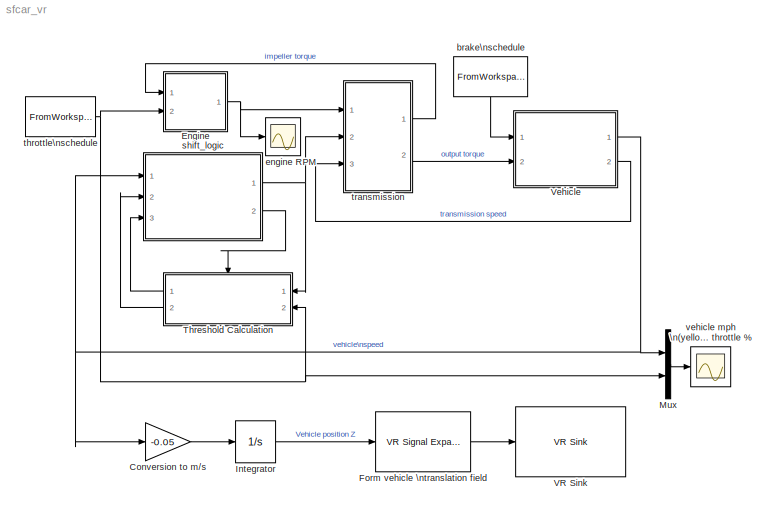
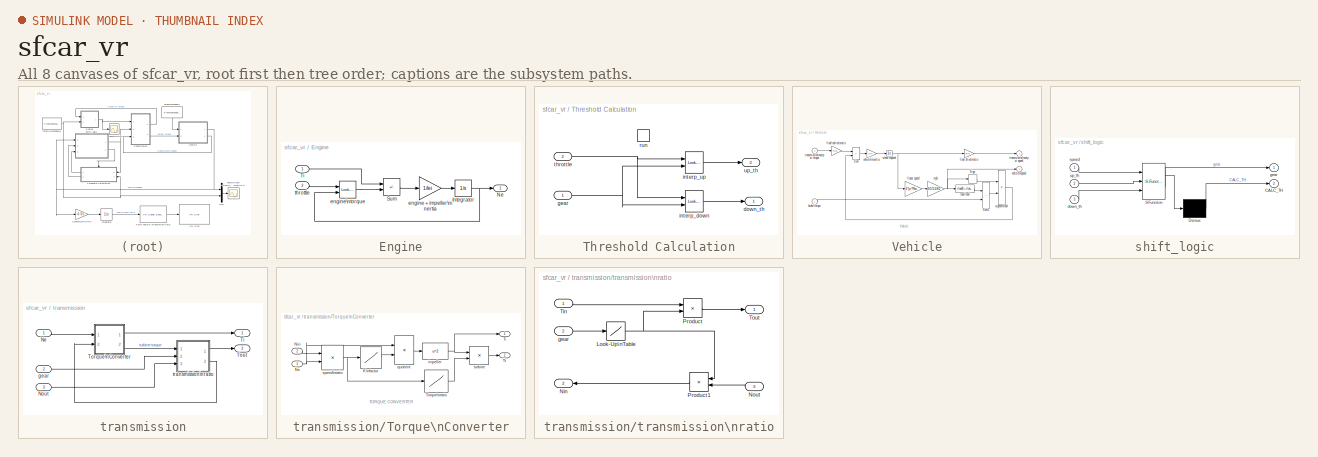
[diagram: thumbnail index - all 8 canvases of the model, root first then tree order]
MODEL sfcar_vr
KIND model
CONFIG AbsTol = 1e-6
CONFIG FixedStep = auto
CONFIG MaxStep = auto
CONFIG MinStep = auto
CONFIG PreLoadFcn = load sf_cardat
CONFIG RelTol = 1e-3
CONFIG Solver = ode5
CONFIG SolverMode = SingleTasking
CONFIG StartTime = 0.0
CONFIG StopTime = 30
BLOCK [Gain] Conversion to m//s
  Gain = -0.05
  Multiplication = Element-wise(K.*u)
  SaturateOnIntegerOverflow = on
BLOCK [SubSystem] Engine
  Ports = [2, 1]
  RTWFcnNameOpts = Auto
  RTWFileNameOpts = Auto
  RTWSystemCode = Auto
  ShowPortLabels = on
  TreatAsAtomicUnit = off
BLOCK [Integrator] Engine/Integrator
  AbsoluteTolerance = auto
  ExternalReset = none
  InitialCondition = 1000
  InitialConditionSource = internal
  LimitOutput = on
  LowerSaturationLimit = 600
  Ports = [1, 1]
  ShowSaturationPort = off
  ShowStatePort = off
  UpperSaturationLimit = 6000
BLOCK [Outport] Engine/Ne
  InitialOutput = 0
  OutputWhenDisabled = held
  Port = 1
BLOCK [Sum] Engine/Sum
  IconShape = rectangular
  Inputs = -+
  Ports = [2, 1]
  SaturateOnIntegerOverflow = on
BLOCK [Inport] Engine/Ti
  Interpolate = on
  LatchInput = off
  Port = 1
BLOCK [Gain] Engine/engine + impeller\ninertia
  Gain = 1/Iei
  Multiplication = Element-wise(K.*u)
  SaturateOnIntegerOverflow = on
BLOCK [Reference] Engine/engine\ntorque  REF=simulink3/Functions\n& Tables/Look-Up\nTable (2-D)
  Ports = [2, 1]
  SourceBlock = simulink3/Functions\n& Tables/Look-Up\nTable (2-D)
  SourceType = Lookup Table (2-D)
  t = emap
  x = thvec
  y = nevec
BLOCK [Inport] Engine/throttle
  Interpolate = on
  LatchInput = off
  Port = 2
BLOCK [Reference] Form vehicle \ntranslation field  REF=vrlib/VR Signal Expander
  Ports = [1, 1]
  SourceBlock = vrlib/VR Signal Expander
  SourceType = VR Signal Expander
  outidx = [1]
  outwidth = 3
BLOCK [Integrator] Integrator
  AbsoluteTolerance = auto
  ExternalReset = none
  InitialCondition = 0
  InitialConditionSource = internal
  LimitOutput = off
  LowerSaturationLimit = -inf
  Ports = [1, 1]
  ShowSaturationPort = off
  ShowStatePort = off
  UpperSaturationLimit = inf
BLOCK [Mux] Mux
  DisplayOption = none
  Inputs = 2
  Ports = [2, 1]
BLOCK [SubSystem] Threshold Calculation
  Ports = [2, 2, 0, 1]
  RTWFcnNameOpts = Auto
  RTWFileNameOpts = Auto
  RTWSystemCode = Auto
  ShowPortLabels = on
  TreatAsAtomicUnit = on
BLOCK [Outport] Threshold Calculation/down_th
  InitialOutput = []
  OutputWhenDisabled = held
  Port = 1
BLOCK [Inport] Threshold Calculation/gear
  Interpolate = on
  LatchInput = off
  Port = 1
BLOCK [Reference] Threshold Calculation/interp_down  REF=simulink3/Functions\n& Tables/Look-Up\nTable (2-D)
  Ports = [2, 1]
  SourceBlock = simulink3/Functions\n& Tables/Look-Up\nTable (2-D)
  SourceType = Lookup Table (2-D)
  t = downtab
  x = downth
  y = [1:4]
BLOCK [Reference] Threshold Calculation/interp_up  REF=simulink3/Functions\n& Tables/Look-Up\nTable (2-D)
  Ports = [2, 1]
  SourceBlock = simulink3/Functions\n& Tables/Look-Up\nTable (2-D)
  SourceType = Lookup Table (2-D)
  t = uptab
  x = upth
  y = [1:4]
BLOCK [TriggerPort] Threshold Calculation/run
  OutputDataType = auto
  Ports = []
  ShowOutputPort = off
  TriggerType = function-call
BLOCK [Inport] Threshold Calculation/throttle
  Interpolate = on
  LatchInput = off
  Port = 2
BLOCK [Outport] Threshold Calculation/up_th
  InitialOutput = []
  OutputWhenDisabled = held
  Port = 2
BLOCK [Reference] VR Sink  REF=vrlib/VR Sink
  FieldsWritten = Octavia.translation
  Ports = [1]
  RemoteChange = off
  RemoteView = off
  SampleTime = 0.1
  SourceBlock = vrlib/VR Sink
  SourceType = Virtual Reality Sink
  ViewEnable = on
  WorldDescription = Skoda Octavia on UCLA Pearlblossom Highway
  WorldFileName = blossom_skoda.wrl
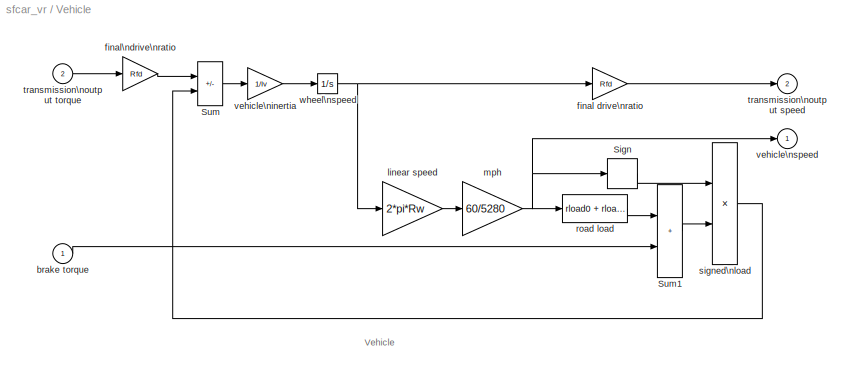
BLOCK [SubSystem] Vehicle
  MaskCallbackString = |||||
  MaskDescription = vehicle dynamics: torque input from trans., outputs are input speed (transmission output) and vehicle speed
  MaskDisplay = plot([cos(pi*[0:5:360]/180) + 6], [sin(pi*[0:5:360]/180) + 1.5],[cos(pi*[0:5:360]/180) + 1], [sin(pi*[0:5:360]/180) + 4], [10 7.5 6.75], [3.5 1 1.5], [10 9.75 7.5 6.25 3 1.5 4 5 7.5], [3.5 4.75 5.5 7 8 7 6 4 5.5], [6.5 4], [7 6], [5.25 2], [2 4], [7.5 1 0], [2.5 6 6.5], [7.5 7.25 9.75], [1 2.25 4.75], [2.75 2 0 0 0.25], [7.5 8 6.5 5.25 5], [1.5 0.5], [6.75 6.25])
  MaskEnableString = on,on,on,on,on,on
  MaskIconFrame = on
  MaskIconOpaque = on
  MaskIconRotate = port
  MaskIconUnits = autoscale
  MaskInitialization = Rfd = @1; rload0 = @2; rload2 = @3; Rw = @4; Iv = @5; N20 = @6;
  MaskPromptString = final drive ratio | drag friction at wheels | aerodynamic drag | wheel radius | vehicle inertia | initial transmission output speed
  MaskStyleString = edit,edit,edit,edit,edit,edit
  MaskToolTipString = on,on,on,on,on,on
  MaskTunableValueString = on,on,on,on,on,on
  MaskType = vehicle model
  MaskValueString = vehicledata(1)|vehicledata(2)|vehicledata(3)|vehicledata(4)|vehicledata(5)|vehicledata(6)/vehicledata(4)*vehicledata(1)
  MaskVariableAliases = ,,,,,
  MaskVisibilityString = on,on,on,on,on,on
  Ports = [2, 2]
  RTWFcnNameOpts = Auto
  RTWFileNameOpts = Auto
  RTWSystemCode = Auto
  ShowPortLabels = off
  TreatAsAtomicUnit = off
BLOCK [Signum] Vehicle/Sign
BLOCK [Sum] Vehicle/Sum
  IconShape = rectangular
  Inputs = +-
  Ports = [2, 1]
  SaturateOnIntegerOverflow = on
BLOCK [Sum] Vehicle/Sum1
  IconShape = rectangular
  Inputs = ++
  Ports = [2, 1]
  SaturateOnIntegerOverflow = on
BLOCK [Inport] Vehicle/brake torque
  Interpolate = on
  LatchInput = off
  Port = 1
BLOCK [Gain] Vehicle/final drive\nratio
  Gain = Rfd
  Multiplication = Element-wise(K.*u)
  SaturateOnIntegerOverflow = on
BLOCK [Gain] Vehicle/final\ndrive\nratio
  Gain = Rfd
  Multiplication = Element-wise(K.*u)
  SaturateOnIntegerOverflow = on
BLOCK [Gain] Vehicle/linear speed
  Gain = 2*pi*Rw
  Multiplication = Element-wise(K.*u)
  SaturateOnIntegerOverflow = on
BLOCK [Gain] Vehicle/mph
  Gain = 60/5280
  Multiplication = Element-wise(K.*u)
  SaturateOnIntegerOverflow = on
BLOCK [Fcn] Vehicle/road load
  Expr = rload0 + rload2*u^2
BLOCK [Product] Vehicle/signed\nload
  Inputs = 2
  Multiplication = Element-wise(.*)
  Ports = [2, 1]
  SaturateOnIntegerOverflow = on
BLOCK [Outport] Vehicle/transmission\noutput speed
  InitialOutput = 0
  OutputWhenDisabled = held
  Port = 2
BLOCK [Inport] Vehicle/transmission\noutput torque
  Interpolate = on
  LatchInput = off
  Port = 2
BLOCK [Gain] Vehicle/vehicle\ninertia
  Gain = 1/Iv
  Multiplication = Element-wise(K.*u)
  SaturateOnIntegerOverflow = on
BLOCK [Outport] Vehicle/vehicle\nspeed
  InitialOutput = 0
  OutputWhenDisabled = held
  Port = 1
BLOCK [Integrator] Vehicle/wheel\nspeed
  AbsoluteTolerance = auto
  ExternalReset = none
  InitialCondition = N20/Rfd
  InitialConditionSource = internal
  LimitOutput = off
  LowerSaturationLimit = -inf
  Ports = [1, 1]
  ShowSaturationPort = off
  ShowStatePort = off
  UpperSaturationLimit = inf
BLOCK [FromWorkspace] brake\nschedule
  Interpolate = on
  OutputAfterFinalValue = Extrapolation
  SampleTime = 0
  VariableName = [0 0;100 0;101 400;200 400]
BLOCK [Scope] engine RPM
  DataFormat = Array
  Decimation = 1
  Floating = off
  Grid = on
  LimitDataPoints = on
  MaxDataPoints = 5000
  NumInputPorts = 1
  Ports = [1]
  SampleInput = off
  SampleTime = 0
  SaveName = ScopeData
  SaveToWorkspace = off
  TickLabels = on
  TimeRange = auto
  YMax = 6000
  YMin = 0
  ZoomMode = yonly
BLOCK [SubSystem] shift_logic
  MaskDescription = Stateflow diagram
  MaskDisplay = plot(sf('Private','sfblk','xIcon'),sf('Private','sfblk','yIcon'));text(0.5,0,sf('Private', 'sfblk', 'tIcon'),'HorizontalAl','Center','VerticalAl','Bottom');
  MaskIconFrame = off
  MaskIconOpaque = off
  MaskIconRotate = none
  MaskIconUnits = autoscale
  MaskSelfModifiable = on
  MaskType = Stateflow
  Ports = [3, 2]
  RTWFcnNameOpts = Auto
  RTWFileNameOpts = Auto
  RTWSystemCode = Auto
  ShowPortLabels = on
  TreatAsAtomicUnit = off
BLOCK [Demux] shift_logic/ Demux 
  BusSelectionMode = off
  Outputs = 1
  Ports = [1, 1]
BLOCK [S-Function] shift_logic/ SFunction 
  FunctionName = sf_sfun
  PortCounts = [3 2]
  Ports = [3, 2]
  SFunctionModules = ''
  Tag = Stateflow S-Function sfcar_vr 1
BLOCK [Outport] shift_logic/CALC_TH
  InitialOutput = []
  OutputWhenDisabled = held
  Port = 2
BLOCK [Inport] shift_logic/down_th
  Interpolate = on
  LatchInput = off
  Port = 3
  PortDimensions = 1
BLOCK [Outport] shift_logic/gear
  InitialOutput = []
  OutputWhenDisabled = held
  Port = 1
BLOCK [Inport] shift_logic/speed
  Interpolate = on
  LatchInput = off
  Port = 1
  PortDimensions = 1
BLOCK [Inport] shift_logic/up_th
  Interpolate = on
  LatchInput = off
  Port = 2
  PortDimensions = 1
BLOCK [FromWorkspace] throttle\nschedule
  Interpolate = on
  OutputAfterFinalValue = Extrapolation
  SampleTime = 0
  VariableName = [0 60; 14.9 40;15 100;100 0;200 0]
BLOCK [SubSystem] transmission
  Ports = [3, 2]
  RTWFcnNameOpts = Auto
  RTWFileNameOpts = Auto
  RTWSystemCode = Auto
  ShowPortLabels = on
  TreatAsAtomicUnit = off
BLOCK [Inport] transmission/Ne
  Interpolate = on
  LatchInput = off
  Port = 1
BLOCK [Inport] transmission/Nout
  Interpolate = on
  LatchInput = off
  Port = 3
BLOCK [Outport] transmission/Ti
  InitialOutput = 0
  OutputWhenDisabled = held
  Port = 1
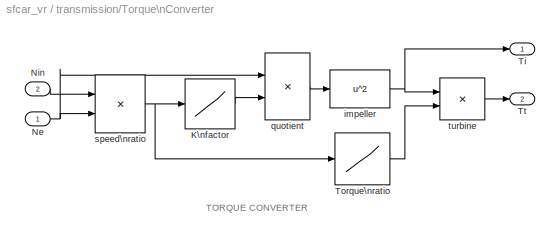
BLOCK [SubSystem] transmission/Torque\nConverter
  MaskCallbackString = ||
  MaskDescription = torque converter
  MaskDisplay = plot([cos([90:10:450]*pi/180),.63*cos([90:10:450]*pi/180),.63*cos([90:10:240]*pi/180),cos([240:10:300]*pi/180),.63*cos([300]*pi/180)],[sin([90:10:450]*pi/180),.63*sin([90:10:450]*pi/180)+.1,.63*sin([90:10:240]*pi/180)+.1,sin([240:10:300]*pi/180),.63*sin([300]*pi/180)+.1])
  MaskEnableString = on,on,on
  MaskHelp = Torque converter input and output torques are computed as a function of the input and output speeds
  MaskIconFrame = on
  MaskIconOpaque = on
  MaskIconRotate = none
  MaskIconUnits = autoscale
  MaskPromptString = speed ratio | K factor | torque ratio
  MaskStyleString = edit,edit,edit
  MaskToolTipString = on,on,on
  MaskTunableValueString = on,on,on
  MaskType = torque converter
  MaskValueString = converter_data(:,1)|converter_data(:,2)|converter_data(:,3)
  MaskVariableAliases = ,,
  MaskVariables = speedratio=@1;Kfactor=@2;Torkratio=@3;
  MaskVisibilityString = on,on,on
  Ports = [2, 2]
  RTWFcnNameOpts = Auto
  RTWFileNameOpts = Auto
  RTWSystemCode = Auto
  ShowPortLabels = off
  TreatAsAtomicUnit = off
BLOCK [Lookup] transmission/Torque\nConverter/K\nfactor
  InputValues = speedratio
  OutputValues = Kfactor
BLOCK [Inport] transmission/Torque\nConverter/Ne
  Interpolate = on
  LatchInput = off
  Port = 1
BLOCK [Inport] transmission/Torque\nConverter/Nin
  Interpolate = on
  LatchInput = off
  Port = 2
BLOCK [Outport] transmission/Torque\nConverter/Ti
  InitialOutput = 0
  OutputWhenDisabled = held
  Port = 1
BLOCK [Lookup] transmission/Torque\nConverter/Torque\nratio
  InputValues = speedratio
  OutputValues = Torkratio
BLOCK [Outport] transmission/Torque\nConverter/Tt
  InitialOutput = 0
  OutputWhenDisabled = held
  Port = 2
BLOCK [Fcn] transmission/Torque\nConverter/impeller
  Expr = u^2
BLOCK [Product] transmission/Torque\nConverter/quotient
  Inputs = */
  Multiplication = Element-wise(.*)
  Ports = [2, 1]
  SaturateOnIntegerOverflow = on
BLOCK [Product] transmission/Torque\nConverter/speed\nratio
  Inputs = */
  Multiplication = Element-wise(.*)
  Ports = [2, 1]
  SaturateOnIntegerOverflow = on
BLOCK [Product] transmission/Torque\nConverter/turbine
  Inputs = 2
  Multiplication = Element-wise(.*)
  Ports = [2, 1]
  SaturateOnIntegerOverflow = on
BLOCK [Outport] transmission/Tout
  InitialOutput = 0
  OutputWhenDisabled = held
  Port = 2
BLOCK [Inport] transmission/gear
  Interpolate = on
  LatchInput = off
  Port = 2
BLOCK [SubSystem] transmission/transmission\nratio
  Ports = [3, 2]
  RTWFcnNameOpts = Auto
  RTWFileNameOpts = Auto
  RTWSystemCode = Auto
  ShowPortLabels = on
  TreatAsAtomicUnit = off
BLOCK [Lookup] transmission/transmission\nratio/Look-Up\nTable
  InputValues = [1 2 3 4]
  OutputValues = [2.393 1.450 1.000 0.677]
BLOCK [Outport] transmission/transmission\nratio/Nin
  InitialOutput = 0
  OutputWhenDisabled = held
  Port = 2
BLOCK [Inport] transmission/transmission\nratio/Nout
  Interpolate = on
  LatchInput = off
  Port = 3
BLOCK [Product] transmission/transmission\nratio/Product
  Inputs = 2
  Multiplication = Element-wise(.*)
  Ports = [2, 1]
  SaturateOnIntegerOverflow = on
BLOCK [Product] transmission/transmission\nratio/Product1
  Inputs = 2
  Multiplication = Element-wise(.*)
  Ports = [2, 1]
  SaturateOnIntegerOverflow = on
BLOCK [Inport] transmission/transmission\nratio/Tin
  Interpolate = on
  LatchInput = off
  Port = 1
BLOCK [Outport] transmission/transmission\nratio/Tout
  InitialOutput = 0
  OutputWhenDisabled = held
  Port = 1
BLOCK [Inport] transmission/transmission\nratio/gear
  Interpolate = on
  LatchInput = off
  Port = 2
BLOCK [Scope] vehicle mph \n(yellow)\n& throttle %
  DataFormat = Array
  Decimation = 1
  Floating = off
  Grid = on
  LimitDataPoints = on
  MaxDataPoints = 5000
  NumInputPorts = 1
  Ports = [1]
  SampleInput = off
  SampleTime = 0
  SaveName = ScopeData
  SaveToWorkspace = off
  TickLabels = on
  TimeRange = auto
  YMax = 140
  YMin = 0
  ZoomMode = xonly
LINE Conversion to m//s:1 -> Integrator:1
NET Engine/Integrator:1 -> Engine/Ne:1, Engine/engine\ntorque:2
LINE Engine/Sum:1 -> Engine/engine + impeller\ninertia:1
LINE Engine/Ti:1 -> Engine/Sum:1
LINE Engine/engine + impeller\ninertia:1 -> Engine/Integrator:1
LINE Engine/engine\ntorque:1 -> Engine/Sum:2
LINE Engine/throttle:1 -> Engine/engine\ntorque:1
NET Engine:1 -> engine RPM:1, transmission:1
LINE Form vehicle \ntranslation field:1 -> VR Sink:1
LINE Integrator:1 -> Form vehicle \ntranslation field:1
LINE Mux:1 -> vehicle mph \n(yellow)\n& throttle %:1
NET Threshold Calculation/gear:1 -> Threshold Calculation/interp_down:2, Threshold Calculation/interp_up:2
LINE Threshold Calculation/interp_down:1 -> Threshold Calculation/down_th:1
LINE Threshold Calculation/interp_up:1 -> Threshold Calculation/up_th:1
NET Threshold Calculation/throttle:1 -> Threshold Calculation/interp_down:1, Threshold Calculation/interp_up:1
LINE Threshold Calculation:1 -> shift_logic:3
LINE Threshold Calculation:2 -> shift_logic:2
LINE Vehicle/Sign:1 -> Vehicle/signed\nload:1
LINE Vehicle/Sum1:1 -> Vehicle/signed\nload:2
LINE Vehicle/Sum:1 -> Vehicle/vehicle\ninertia:1
LINE Vehicle/brake torque:1 -> Vehicle/Sum1:2
LINE Vehicle/final drive\nratio:1 -> Vehicle/transmission\noutput speed:1
LINE Vehicle/final\ndrive\nratio:1 -> Vehicle/Sum:1
LINE Vehicle/linear speed:1 -> Vehicle/mph:1
NET Vehicle/mph:1 -> Vehicle/Sign:1, Vehicle/road load:1, Vehicle/vehicle\nspeed:1
LINE Vehicle/road load:1 -> Vehicle/Sum1:1
LINE Vehicle/signed\nload:1 -> Vehicle/Sum:2
LINE Vehicle/transmission\noutput torque:1 -> Vehicle/final\ndrive\nratio:1
LINE Vehicle/vehicle\ninertia:1 -> Vehicle/wheel\nspeed:1
NET Vehicle/wheel\nspeed:1 -> Vehicle/final drive\nratio:1, Vehicle/linear speed:1
NET Vehicle:1 -> Conversion to m//s:1, Mux:1, shift_logic:1
LINE Vehicle:2 -> transmission:3
LINE brake\nschedule:1 -> Vehicle:1
LINE shift_logic/ Demux :1 -> shift_logic/CALC_TH:1
LINE shift_logic/ SFunction :1 -> shift_logic/ Demux :1
LINE shift_logic/ SFunction :2 -> shift_logic/gear:1
LINE shift_logic/down_th:1 -> shift_logic/ SFunction :3
LINE shift_logic/speed:1 -> shift_logic/ SFunction :1
LINE shift_logic/up_th:1 -> shift_logic/ SFunction :2
NET shift_logic:1 -> Threshold Calculation:1, transmission:2
LINE shift_logic:2 -> Threshold Calculation:trigger
NET throttle\nschedule:1 -> Engine:2, Mux:2, Threshold Calculation:2
LINE transmission/Ne:1 -> transmission/Torque\nConverter:1
LINE transmission/Nout:1 -> transmission/transmission\nratio:3
LINE transmission/Torque\nConverter/K\nfactor:1 -> transmission/Torque\nConverter/quotient:2
NET transmission/Torque\nConverter/Ne:1 -> transmission/Torque\nConverter/quotient:1, transmission/Torque\nConverter/speed\nratio:2
LINE transmission/Torque\nConverter/Nin:1 -> transmission/Torque\nConverter/speed\nratio:1
LINE transmission/Torque\nConverter/Torque\nratio:1 -> transmission/Torque\nConverter/turbine:2
NET transmission/Torque\nConverter/impeller:1 -> transmission/Torque\nConverter/Ti:1, transmission/Torque\nConverter/turbine:1
LINE transmission/Torque\nConverter/quotient:1 -> transmission/Torque\nConverter/impeller:1
NET transmission/Torque\nConverter/speed\nratio:1 -> transmission/Torque\nConverter/K\nfactor:1, transmission/Torque\nConverter/Torque\nratio:1
LINE transmission/Torque\nConverter/turbine:1 -> transmission/Torque\nConverter/Tt:1
LINE transmission/Torque\nConverter:1 -> transmission/Ti:1
LINE transmission/Torque\nConverter:2 -> transmission/transmission\nratio:1
LINE transmission/gear:1 -> transmission/transmission\nratio:2
NET transmission/transmission\nratio/Look-Up\nTable:1 -> transmission/transmission\nratio/Product1:1, transmission/transmission\nratio/Product:2
LINE transmission/transmission\nratio/Nout:1 -> transmission/transmission\nratio/Product1:2
LINE transmission/transmission\nratio/Product1:1 -> transmission/transmission\nratio/Nin:1
LINE transmission/transmission\nratio/Product:1 -> transmission/transmission\nratio/Tout:1
LINE transmission/transmission\nratio/Tin:1 -> transmission/transmission\nratio/Product:1
LINE transmission/transmission\nratio/gear:1 -> transmission/transmission\nratio/Look-Up\nTable:1
LINE transmission/transmission\nratio:1 -> transmission/Tout:1
LINE transmission/transmission\nratio:2 -> transmission/Torque\nConverter:2
LINE transmission:1 -> Engine:1
LINE transmission:2 -> Vehicle:2
note: NET lines group one-source signal fan-out (src -> all destinations, sorted); 1:1 wires keep LINE
CHART shift_logic states=9 transitions=14
  STATE_LABEL 'downshifting'
  STATE_LABEL 'gear_state'
  STATE_LABEL 'fourth\\nentry: gear = 4;'
  STATE_LABEL 'second\\nentry: gear = 2;'
  STATE_LABEL 'third\\nentry: gear = 3;'
  STATE_LABEL 'first\\nentry: gear = 1;'
  STATE_LABEL 'selection_state\\nduring: CALC_TH;'
  STATE_LABEL 'upshifting'
  STATE_LABEL 'steady_state'
